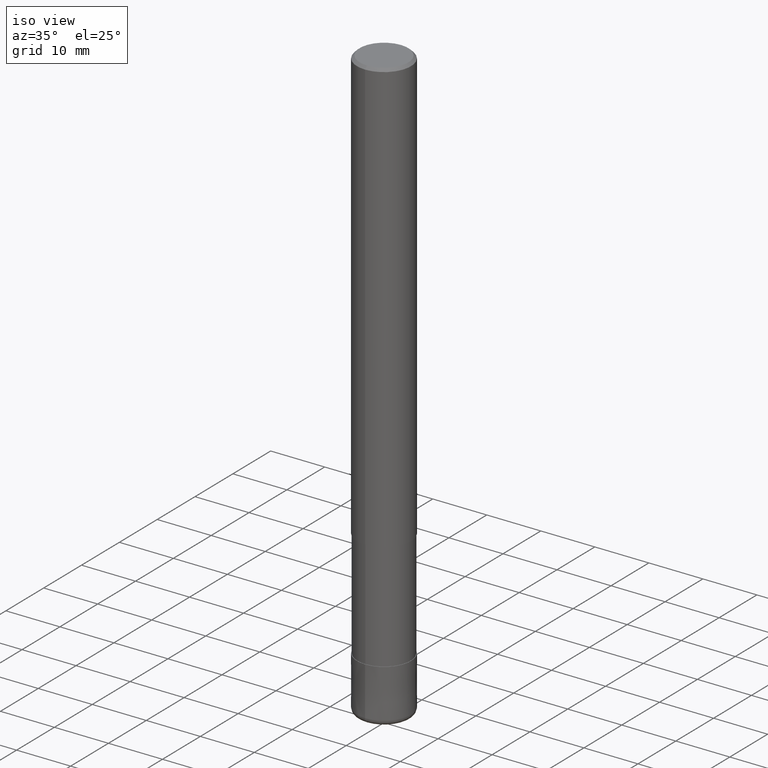
[diagram: clean part render]
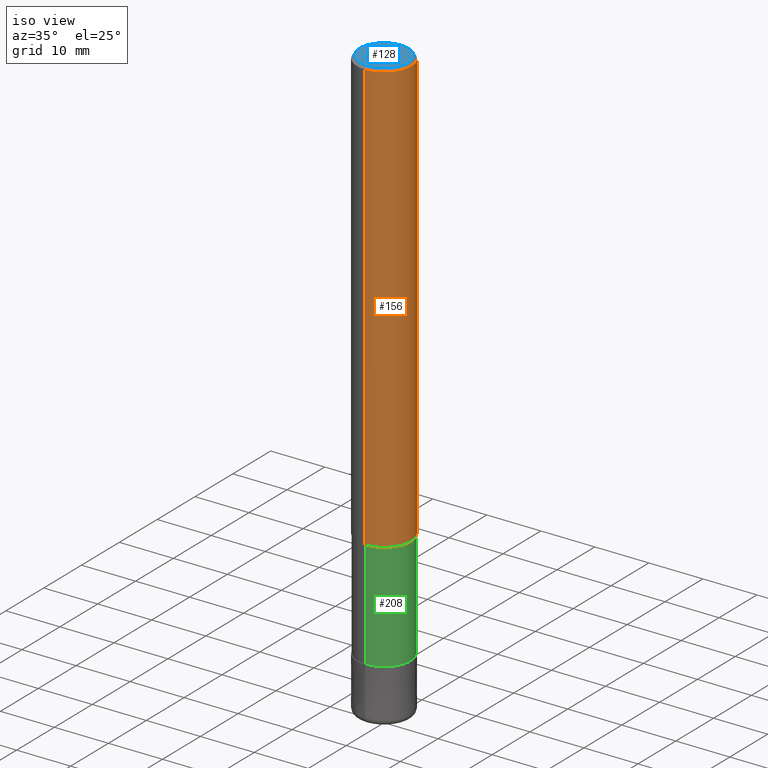
[diagram: same view with three faces highlighted in distinct colors, each labeled with its STEP entity id]
A machine part, iso view with three faces highlighted in distinct colors.
Their STEP definitions:

[orange] entity #156 — the highlighted cylindrical surface (edge-blend (fillet) strip) has radius 5 mm, axis along (-0, -0, 1).
#94=EDGE_CURVE('',#176,#194,#232,.T.);
#96=VERTEX_POINT('',#234);
#108=EDGE_CURVE('',#194,#154,#246,.T.);
#110=EDGE_CURVE('',#154,#96,#248,.T.);
#154=VERTEX_POINT('',#299);
#156=ADVANCED_FACE('',(#301),#302,.T.);
#176=VERTEX_POINT('',#324);
#178=EDGE_CURVE('',#176,#96,#326,.T.);
#194=VERTEX_POINT('',#343);
#232=LINE('',#378,#379);
#234=CARTESIAN_POINT('',(6.12303176911189E-016,-5.0,-0.5));
#246=CIRCLE('',#396,5.0);
#248=LINE('',#399,#400);
#299=CARTESIAN_POINT('',(6.12303176911189E-016,-5.0,-80.0));
#301=FACE_OUTER_BOUND('',#462,.T.);
#302=CYLINDRICAL_SURFACE('',#463,5.0);
#324=CARTESIAN_POINT('',(0.0,5.0,-0.5));
#326=CIRCLE('',#493,5.0);
#343=CARTESIAN_POINT('',(0.0,5.0,-80.0));
#378=CARTESIAN_POINT('',(-6.12303176911189E-016,5.0,-40.25));
#379=VECTOR('',#548,1.0);
#396=AXIS2_PLACEMENT_3D('',#554,#555,#556);
#399=CARTESIAN_POINT('',(6.12303176911189E-016,-5.0,-40.25));
#400=VECTOR('',#557,1.0);
#462=EDGE_LOOP('',(#625,#626,#627,#628));
#463=AXIS2_PLACEMENT_3D('',#629,#630,#631);
#493=AXIS2_PLACEMENT_3D('',#658,#659,#660);
#548=DIRECTION('',(0.0,0.0,-1.0));
#554=CARTESIAN_POINT('',(0.0,0.0,-80.0));
#555=DIRECTION('',(0.0,0.0,-1.0));
#556=DIRECTION('',(0.0,1.0,0.0));
#557=DIRECTION('',(-0.0,-0.0,1.0));
#625=ORIENTED_EDGE('',*,*,#94,.F.);
#626=ORIENTED_EDGE('',*,*,#178,.T.);
#627=ORIENTED_EDGE('',*,*,#110,.F.);
#628=ORIENTED_EDGE('',*,*,#108,.F.);
#629=CARTESIAN_POINT('',(0.0,0.0,-40.25));
#630=DIRECTION('',(-0.0,-0.0,1.0));
#631=DIRECTION('',(0.0,1.0,0.0));
#658=CARTESIAN_POINT('',(0.0,0.0,-0.5));
#659=DIRECTION('',(0.0,0.0,-1.0));
#660=DIRECTION('',(0.0,1.0,0.0));

[blue] entity #128 — the highlighted planar face has unit normal (-0, 0, 1).
#100=EDGE_CURVE('',#160,#114,#238,.T.);
#114=VERTEX_POINT('',#253);
#128=ADVANCED_FACE('',(#269),#270,.T.);
#130=EDGE_CURVE('',#114,#160,#272,.T.);
#160=VERTEX_POINT('',#307);
#238=CIRCLE('',#386,4.5);
#253=CARTESIAN_POINT('',(0.0,4.5,0.0));
#269=FACE_OUTER_BOUND('',#423,.T.);
#270=PLANE('',#424);
#272=CIRCLE('',#427,4.5);
#307=CARTESIAN_POINT('',(5.5107285922007E-016,-4.5,0.0));
#386=AXIS2_PLACEMENT_3D('',#549,#550,#551);
#423=EDGE_LOOP('',(#584,#585));
#424=AXIS2_PLACEMENT_3D('',#586,#587,#588);
#427=AXIS2_PLACEMENT_3D('',#589,#590,#591);
#549=CARTESIAN_POINT('',(0.0,0.0,0.0));
#550=DIRECTION('',(0.0,0.0,-1.0));
#551=DIRECTION('',(0.0,1.0,0.0));
#584=ORIENTED_EDGE('',*,*,#130,.F.);
#585=ORIENTED_EDGE('',*,*,#100,.F.);
#586=CARTESIAN_POINT('',(0.0,2.25,0.0));
#587=DIRECTION('',(-0.0,0.0,1.0));
#588=DIRECTION('',(0.0,-1.0,0.0));
#589=CARTESIAN_POINT('',(0.0,0.0,0.0));
#590=DIRECTION('',(0.0,0.0,-1.0));
#591=DIRECTION('',(0.0,1.0,0.0));

[green] entity #208 — the highlighted cylindrical surface (edge-blend (fillet) strip) has radius 4.91 mm, axis along (-0, -0, 1).
#98=VERTEX_POINT('',#236);
#106=VERTEX_POINT('',#244);
#138=EDGE_CURVE('',#106,#98,#282,.T.);
#152=VERTEX_POINT('',#297);
#164=VERTEX_POINT('',#312);
#166=EDGE_CURVE('',#152,#98,#314,.T.);
#192=EDGE_CURVE('',#164,#152,#341,.T.);
#200=EDGE_CURVE('',#106,#164,#351,.T.);
#208=ADVANCED_FACE('',(#360),#361,.T.);
#236=CARTESIAN_POINT('',(6.01275596695018E-016,-4.90995,-80.0));
#244=CARTESIAN_POINT('',(0.0,4.90995,-80.0));
#282=CIRCLE('',#439,4.90995);
#297=CARTESIAN_POINT('',(6.01275596695018E-016,-4.90995,-100.0));
#312=CARTESIAN_POINT('',(0.0,4.90995,-100.0));
#314=LINE('',#476,#477);
#341=CIRCLE('',#514,4.90995);
#351=LINE('',#525,#526);
#360=FACE_OUTER_BOUND('',#537,.T.);
#361=CYLINDRICAL_SURFACE('',#538,4.90995);
#439=AXIS2_PLACEMENT_3D('',#603,#604,#605);
#476=CARTESIAN_POINT('',(6.01275596695018E-016,-4.90995,-90.0));
#477=VECTOR('',#648,1.0);
#514=AXIS2_PLACEMENT_3D('',#674,#675,#676);
#525=CARTESIAN_POINT('',(-6.01275596695018E-016,4.90995,-90.0));
#526=VECTOR('',#693,1.0);
#537=EDGE_LOOP('',(#709,#710,#711,#712));
#538=AXIS2_PLACEMENT_3D('',#713,#714,#715);
#603=CARTESIAN_POINT('',(0.0,0.0,-80.0));
#604=DIRECTION('',(0.0,0.0,-1.0));
#605=DIRECTION('',(0.0,1.0,0.0));
#648=DIRECTION('',(-0.0,-0.0,1.0));
#674=CARTESIAN_POINT('',(0.0,0.0,-100.0));
#675=DIRECTION('',(0.0,0.0,-1.0));
#676=DIRECTION('',(0.0,1.0,0.0));
#693=DIRECTION('',(0.0,0.0,-1.0));
#709=ORIENTED_EDGE('',*,*,#200,.F.);
#710=ORIENTED_EDGE('',*,*,#138,.T.);
#711=ORIENTED_EDGE('',*,*,#166,.F.);
#712=ORIENTED_EDGE('',*,*,#192,.F.);
#713=CARTESIAN_POINT('',(0.0,0.0,-90.0));
#714=DIRECTION('',(-0.0,-0.0,1.0));
#715=DIRECTION('',(0.0,1.0,0.0));